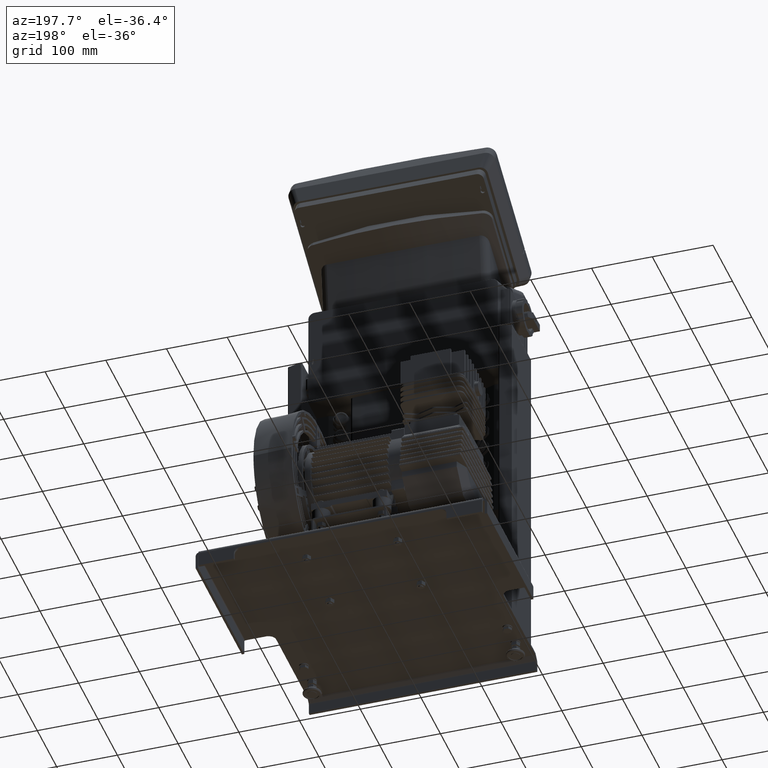
[diagram: clean part render]
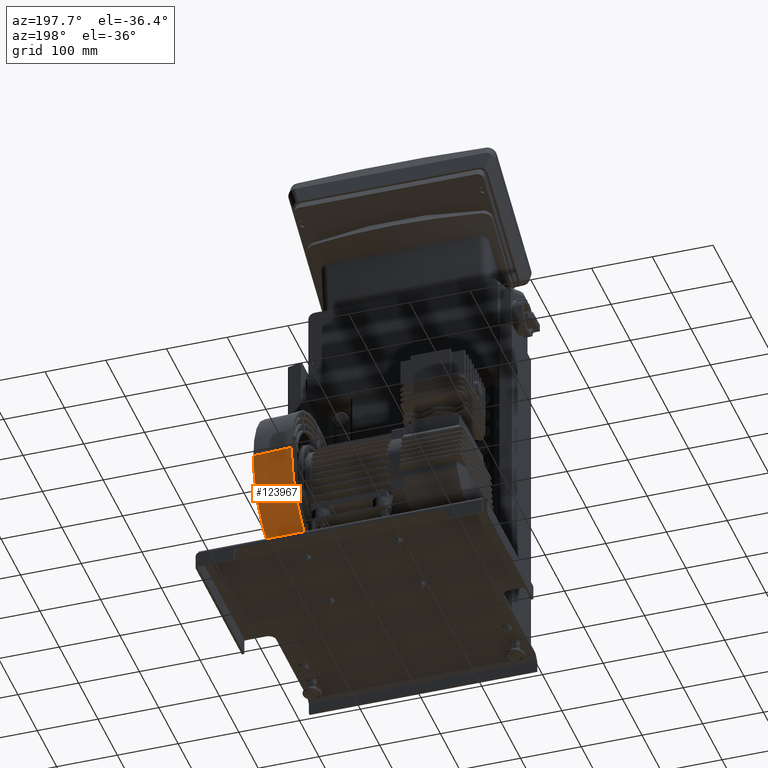
[diagram: same view with one face highlighted and labeled with its STEP entity id]
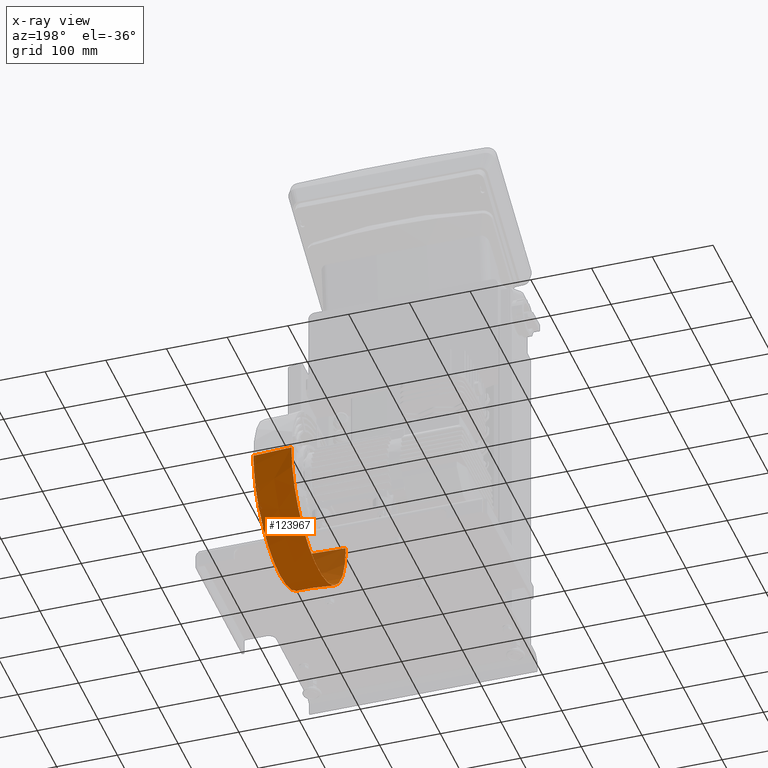
[diagram: x-ray of the same camera — body ghosted, the highlighted face saturated]
A machine part, auxiliary view. The second image highlights one B-rep face of the part: STEP entity #123967.
The next image is the same camera in x-ray: the body ghosted, the highlighted face saturated — about 12% of this face is hidden behind the body in this view.
In plain terms, the highlighted conical surface has half-angle 2.705 deg.
Its self-contained STEP definition (entity closure, byte-faithful):
#112827=CARTESIAN_POINT('',(74.299999999916977,436.0,155.00000000000003));
#112828=VERTEX_POINT('',#112827);
#112829=CARTESIAN_POINT('',(137.79999999991699,433.0,155.0));
#112830=VERTEX_POINT('',#112829);
#112831=CARTESIAN_POINT('',(74.299999999916977,436.0,155.0));
#112832=DIRECTION('',(0.998885862491398,-0.04719145807046,0.0));
#112833=VECTOR('',#112832,63.570826642415163);
#112834=LINE('',#112831,#112833);
#112835=EDGE_CURVE('',#112828,#112830,#112834,.T.);
#112837=CARTESIAN_POINT('',(74.299999999916935,156.00000000000009,155.00000000000003));
#112838=VERTEX_POINT('',#112837);
#112846=CARTESIAN_POINT('',(137.79999999991696,159.00000000000009,155.00000000000003));
#112847=VERTEX_POINT('',#112846);
#112848=CARTESIAN_POINT('',(74.299999999916935,156.00000000000009,155.00000000000003));
#112849=DIRECTION('',(0.998885862491398,0.04719145807046,0.0));
#112850=VECTOR('',#112849,63.570826642415177);
#112851=LINE('',#112848,#112850);
#112852=EDGE_CURVE('',#112838,#112847,#112851,.T.);
#118046=CARTESIAN_POINT('',(74.299999999916949,296.00000000000006,155.0));
#118047=DIRECTION('',(-1.0,0.0,0.0));
#118048=DIRECTION('',(0.0,1.0,0.0));
#118049=AXIS2_PLACEMENT_3D('',#118046,#118047,#118048);
#118050=CIRCLE('',#118049,140.0);
#118051=EDGE_CURVE('',#112828,#112838,#118050,.T.);
#120239=CARTESIAN_POINT('',(137.79999999991691,171.68366596191626,97.428747700509689));
#120240=VERTEX_POINT('',#120239);
#120263=CARTESIAN_POINT('',(137.79999999991691,169.34454732028797,102.77552004569876));
#120264=VERTEX_POINT('',#120263);
#120278=CARTESIAN_POINT('',(137.79999999991696,296.0,155.0));
#120279=DIRECTION('',(-1.0,0.0,0.0));
#120280=DIRECTION('',(0.0,-1.0,0.0));
#120281=AXIS2_PLACEMENT_3D('',#120278,#120279,#120280);
#120282=CIRCLE('',#120281,136.99999999999994);
#120283=EDGE_CURVE('',#120240,#120264,#120282,.T.);
#120293=CARTESIAN_POINT('',(137.79999999991696,420.31633403808382,97.428747700509774));
#120294=VERTEX_POINT('',#120293);
#120310=CARTESIAN_POINT('',(137.79999999991696,422.6554526797122,102.77552004569887));
#120311=VERTEX_POINT('',#120310);
#120312=CARTESIAN_POINT('',(137.79999999991696,296.0,155.0));
#120313=DIRECTION('',(-1.0,0.0,0.0));
#120314=DIRECTION('',(0.0,-1.0,0.0));
#120315=AXIS2_PLACEMENT_3D('',#120312,#120313,#120314);
#120316=CIRCLE('',#120315,136.99999999999994);
#120317=EDGE_CURVE('',#120311,#120294,#120316,.T.);
#120351=CARTESIAN_POINT('',(137.79999999991696,187.44454732028797,71.425400428702062));
#120352=VERTEX_POINT('',#120351);
#120375=CARTESIAN_POINT('',(137.79999999991696,183.98366596191627,76.124522767412486));
#120376=VERTEX_POINT('',#120375);
#120390=CARTESIAN_POINT('',(137.79999999991696,296.0,155.0));
#120391=DIRECTION('',(-1.0,0.0,0.0));
#120392=DIRECTION('',(0.0,-1.0,0.0));
#120393=AXIS2_PLACEMENT_3D('',#120390,#120391,#120392);
#120394=CIRCLE('',#120393,136.99999999999994);
#120395=EDGE_CURVE('',#120352,#120376,#120394,.T.);
#120407=CARTESIAN_POINT('',(137.79999999991691,408.01633403808387,76.1245227674126));
#120408=VERTEX_POINT('',#120407);
#120431=CARTESIAN_POINT('',(137.79999999991691,404.55545267971218,71.425400428702176));
#120432=VERTEX_POINT('',#120431);
#120446=CARTESIAN_POINT('',(137.79999999991696,296.0,155.0));
#120447=DIRECTION('',(-1.0,0.0,0.0));
#120448=DIRECTION('',(0.0,-1.0,0.0));
#120449=AXIS2_PLACEMENT_3D('',#120446,#120447,#120448);
#120450=CIRCLE('',#120449,136.99999999999994);
#120451=EDGE_CURVE('',#120408,#120432,#120450,.T.);
#123918=CARTESIAN_POINT('',(106.04999999991695,296.00000000000006,155.0));
#123919=DIRECTION('',(-1.0,1.224627E-016,-6.748919E-032));
#123920=DIRECTION('',(0.0,1.0,0.0));
#123921=AXIS2_PLACEMENT_3D('',#123918,#123919,#123920);
#123922=CONICAL_SURFACE('',#123921,138.49999999999997,2.704875985735673);
#123923=ORIENTED_EDGE('',*,*,#112835,.T.);
#123924=CARTESIAN_POINT('',(137.79999999991696,296.0,155.0));
#123925=DIRECTION('',(-1.0,0.0,0.0));
#123926=DIRECTION('',(0.0,1.0,0.0));
#123927=AXIS2_PLACEMENT_3D('',#123924,#123925,#123926);
#123928=CIRCLE('',#123927,136.99999999999997);
#123929=EDGE_CURVE('',#112830,#120311,#123928,.T.);
#123930=ORIENTED_EDGE('',*,*,#123929,.T.);
#123931=ORIENTED_EDGE('',*,*,#120317,.T.);
#123932=CARTESIAN_POINT('',(137.79999999991696,296.0,155.0));
#123933=DIRECTION('',(-1.0,0.0,0.0));
#123934=DIRECTION('',(0.0,1.0,0.0));
#123935=AXIS2_PLACEMENT_3D('',#123932,#123933,#123934);
#123936=CIRCLE('',#123935,136.99999999999997);
#123937=EDGE_CURVE('',#120294,#120408,#123936,.T.);
#123938=ORIENTED_EDGE('',*,*,#123937,.T.);
#123939=ORIENTED_EDGE('',*,*,#120451,.T.);
#123940=CARTESIAN_POINT('',(137.79999999991696,296.0,155.0));
#123941=DIRECTION('',(-1.0,0.0,0.0));
#123942=DIRECTION('',(0.0,1.0,0.0));
#123943=AXIS2_PLACEMENT_3D('',#123940,#123941,#123942);
#123944=CIRCLE('',#123943,136.99999999999997);
#123945=EDGE_CURVE('',#120432,#120352,#123944,.T.);
#123946=ORIENTED_EDGE('',*,*,#123945,.T.);
#123947=ORIENTED_EDGE('',*,*,#120395,.T.);
#123948=CARTESIAN_POINT('',(137.79999999991696,296.0,155.0));
#123949=DIRECTION('',(-1.0,0.0,0.0));
#123950=DIRECTION('',(0.0,1.0,0.0));
#123951=AXIS2_PLACEMENT_3D('',#123948,#123949,#123950);
#123952=CIRCLE('',#123951,136.99999999999997);
#123953=EDGE_CURVE('',#120376,#120240,#123952,.T.);
#123954=ORIENTED_EDGE('',*,*,#123953,.T.);
#123955=ORIENTED_EDGE('',*,*,#120283,.T.);
#123956=CARTESIAN_POINT('',(137.79999999991696,296.0,155.0));
#123957=DIRECTION('',(-1.0,0.0,0.0));
#123958=DIRECTION('',(0.0,1.0,0.0));
#123959=AXIS2_PLACEMENT_3D('',#123956,#123957,#123958);
#123960=CIRCLE('',#123959,136.99999999999997);
#123961=EDGE_CURVE('',#120264,#112847,#123960,.T.);
#123962=ORIENTED_EDGE('',*,*,#123961,.T.);
#123963=ORIENTED_EDGE('',*,*,#112852,.F.);
#123964=ORIENTED_EDGE('',*,*,#118051,.F.);
#123965=EDGE_LOOP('',(#123923,#123930,#123931,#123938,#123939,#123946,#123947,#123954,#123955,#123962,#123963,#123964));
#123966=FACE_OUTER_BOUND('',#123965,.T.);
#123967=ADVANCED_FACE('',(#123966),#123922,.T.);